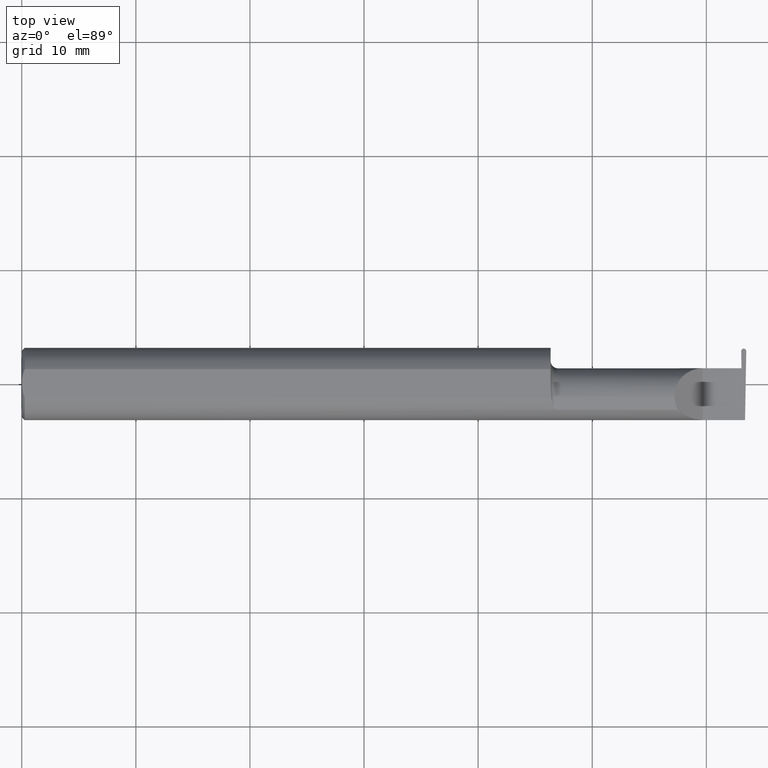
[diagram: clean part render]
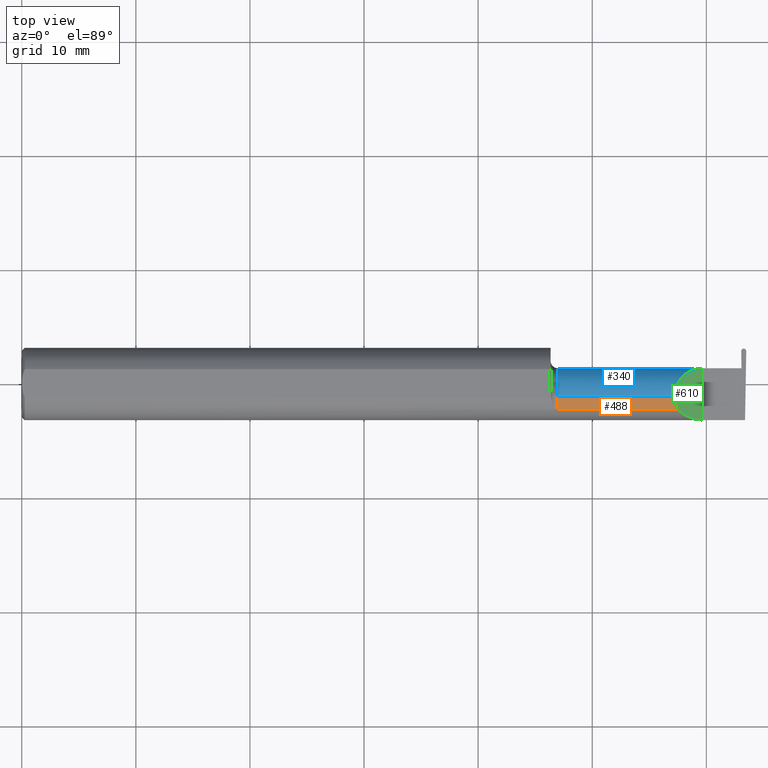
[diagram: same view with three faces highlighted in distinct colors, each labeled with its STEP entity id]
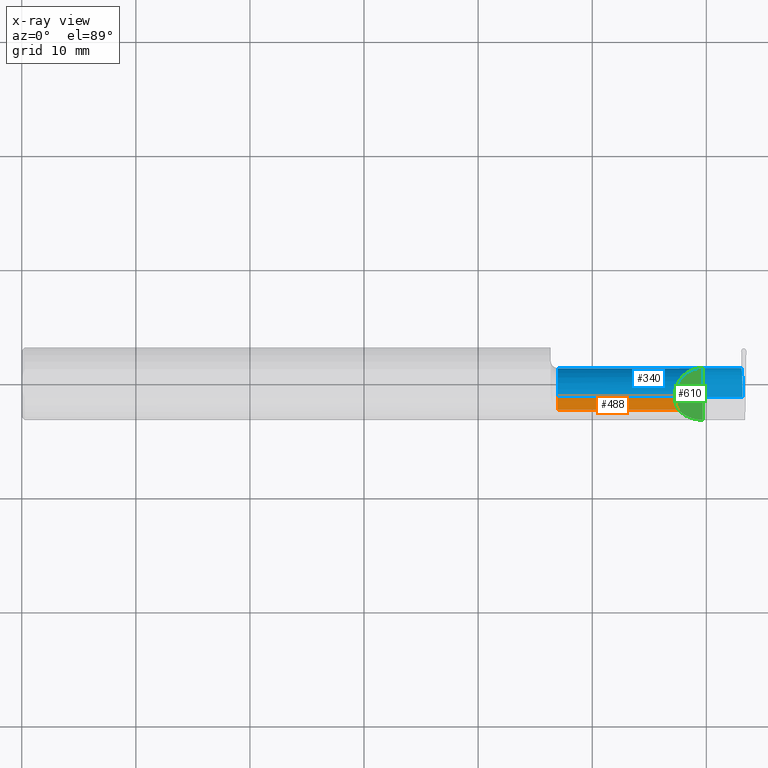
[diagram: x-ray of the same camera — body ghosted, the three highlighted faces saturated]
A machine part, top view with three faces highlighted in distinct colors.
The next image is the same camera in x-ray (body ghosted, the three faces saturated) — at least one of them is partly hidden behind the body in this view.
Their STEP definitions:

[orange] entity #488 — the highlighted cylindrical surface (edge-blend (fillet) strip) has radius 2.4892 mm, axis along (-1, -0, -0).
#3 = ORIENTED_EDGE ( 'NONE', *, *, #796, .F. ) ;
#46 = ORIENTED_EDGE ( 'NONE', *, *, #664, .T. ) ;
#66 = CARTESIAN_POINT ( 'NONE',  ( 2.263691591372603895, -0.09042045454545429017, 0.08630840862739526387 ) ) ;
#90 = AXIS2_PLACEMENT_3D ( 'NONE', #227, #290, #478 ) ;
#101 = CARTESIAN_POINT ( 'NONE',  ( 2.251999999999998892, -0.04400000000000009459, 0.09800000000000008704 ) ) ;
#119 = CARTESIAN_POINT ( 'NONE',  ( 1.849999999999999867, -0.04400000000000009459, 0.09800000000000008704 ) ) ;
#128 = EDGE_LOOP ( 'NONE', ( #425, #46, #3, #735 ) ) ;
#137 = VERTEX_POINT ( 'NONE', #66 ) ;
#147 = CARTESIAN_POINT ( 'NONE',  ( 1.849999999999999867, -0.09042045454545420691, 0.08630840862739531938 ) ) ;
#154 =( BOUNDED_CURVE ( )  B_SPLINE_CURVE ( 3, ( #202, #502, #629, #319 ),
 .UNSPECIFIED., .F., .T. ) 
 B_SPLINE_CURVE_WITH_KNOTS ( ( 4, 4 ),
 ( 5.789722842198297137, 6.283185307179586232 ),
 .UNSPECIFIED. ) 
 CURVE ( )  GEOMETRIC_REPRESENTATION_ITEM ( )  RATIONAL_B_SPLINE_CURVE ( ( 1.000000000000000000, 0.9798106333074688701, 0.9798106333074688701, 1.000000000000000000 ) ) 
 REPRESENTATION_ITEM ( '' )  );
#172 = AXIS2_PLACEMENT_3D ( 'NONE', #761, #707, #215 ) ;
#182 = VECTOR ( 'NONE', #382, 39.37007874015748143 ) ;
#202 = CARTESIAN_POINT ( 'NONE',  ( 2.263691591372603895, -0.09042045454545429017, 0.08630840862739526387 ) ) ;
#215 = DIRECTION ( 'NONE',  ( 0.000000000000000000, 0.000000000000000000, 1.000000000000000000 ) ) ;
#227 = CARTESIAN_POINT ( 'NONE',  ( 1.824999999999999956, -0.04400000000000009459, 0.000000000000000000 ) ) ;
#242 = CARTESIAN_POINT ( 'NONE',  ( 1.824999999999999956, -0.04400000000000009459, 0.09800000000000008704 ) ) ;
#255 = VERTEX_POINT ( 'NONE', #101 ) ;
#290 = DIRECTION ( 'NONE',  ( -1.000000000000000000, -0.000000000000000000, -0.000000000000000000 ) ) ;
#319 = CARTESIAN_POINT ( 'NONE',  ( 2.251999999999998892, -0.04400000000000009459, 0.09800000000000008704 ) ) ;
#329 = VECTOR ( 'NONE', #595, 39.37007874015748143 ) ;
#382 = DIRECTION ( 'NONE',  ( -1.000000000000000000, -0.000000000000000000, -0.000000000000000000 ) ) ;
#425 = ORIENTED_EDGE ( 'NONE', *, *, #809, .T. ) ;
#448 = EDGE_CURVE ( 'NONE', #790, #137, #725, .T. ) ;
#468 = FACE_OUTER_BOUND ( 'NONE', #128, .T. ) ;
#478 = DIRECTION ( 'NONE',  ( 0.000000000000000000, 0.000000000000000000, 1.000000000000000000 ) ) ;
#488 = ADVANCED_FACE ( 'NONE', ( #468 ), #786, .T. ) ;
#502 = CARTESIAN_POINT ( 'NONE',  ( 2.255977500337024377, -0.07607783494366271437, 0.09402249966297458739 ) ) ;
#595 = DIRECTION ( 'NONE',  ( 1.000000000000000000, 0.000000000000000000, 0.000000000000000000 ) ) ;
#599 = CARTESIAN_POINT ( 'NONE',  ( 2.166241705000000017, -0.09042045454545424854, 0.08630840862739529162 ) ) ;
#606 = VERTEX_POINT ( 'NONE', #119 ) ;
#629 = CARTESIAN_POINT ( 'NONE',  ( 2.251999999999998892, -0.06028551311893201592, 0.09800000000000008704 ) ) ;
#664 = EDGE_CURVE ( 'NONE', #255, #606, #734, .T. ) ;
#707 = DIRECTION ( 'NONE',  ( -1.000000000000000000, -0.000000000000000000, -0.000000000000000000 ) ) ;
#725 = LINE ( 'NONE', #599, #329 ) ;
#734 = LINE ( 'NONE', #242, #182 ) ;
#735 = ORIENTED_EDGE ( 'NONE', *, *, #448, .T. ) ;
#742 = CIRCLE ( 'NONE', #172, 0.09800000000000008704 ) ;
#761 = CARTESIAN_POINT ( 'NONE',  ( 1.849999999999999867, -0.04400000000000009459, 0.000000000000000000 ) ) ;
#786 = CYLINDRICAL_SURFACE ( 'NONE', #90, 0.09800000000000008704 ) ;
#790 = VERTEX_POINT ( 'NONE', #147 ) ;
#796 = EDGE_CURVE ( 'NONE', #790, #606, #742, .T. ) ;
#809 = EDGE_CURVE ( 'NONE', #137, #255, #154, .T. ) ;

[blue] entity #340 — the highlighted cylindrical surface (edge-blend (fillet) strip) has radius 2.4892 mm, axis along (-1, -0, -0).
#7 = AXIS2_PLACEMENT_3D ( 'NONE', #230, #730, #779 ) ;
#18 = CARTESIAN_POINT ( 'NONE',  ( 2.487115857322145018, -0.04400000000000009459, -0.09800000000000008704 ) ) ;
#31 = EDGE_CURVE ( 'NONE', #536, #445, #450, .T. ) ;
#47 = CARTESIAN_POINT ( 'NONE',  ( 1.824999999999999956, 0.05376127692546274484, -0.006836134426924772231 ) ) ;
#54 = EDGE_CURVE ( 'NONE', #255, #144, #250, .T. ) ;
#101 = CARTESIAN_POINT ( 'NONE',  ( 2.251999999999998892, -0.04400000000000009459, 0.09800000000000008704 ) ) ;
#110 = DIRECTION ( 'NONE',  ( 1.000000000000000000, 0.000000000000000000, 0.000000000000000000 ) ) ;
#119 = CARTESIAN_POINT ( 'NONE',  ( 1.849999999999999867, -0.04400000000000009459, 0.09800000000000008704 ) ) ;
#122 = CARTESIAN_POINT ( 'NONE',  ( 2.292592929112562405, 0.05399999999999997163, 0.05740707088743676745 ) ) ;
#125 = CARTESIAN_POINT ( 'NONE',  ( 2.477329199258169634, 0.05399999999999997163, 0.000000000000000000 ) ) ;
#138 = EDGE_CURVE ( 'NONE', #536, #512, #303, .T. ) ;
#144 = VERTEX_POINT ( 'NONE', #753 ) ;
#149 = ORIENTED_EDGE ( 'NONE', *, *, #237, .F. ) ;
#157 = ORIENTED_EDGE ( 'NONE', *, *, #664, .F. ) ;
#176 = LINE ( 'NONE', #674, #600 ) ;
#178 = CARTESIAN_POINT ( 'NONE',  ( 2.477090476183632539, 0.05376127692546273096, -0.006836134426924921417 ) ) ;
#182 = VECTOR ( 'NONE', #382, 39.37007874015748143 ) ;
#195 = CARTESIAN_POINT ( 'NONE',  ( 1.824999999999999956, -0.04400000000000008765, -0.09800000000000008704 ) ) ;
#219 = CARTESIAN_POINT ( 'NONE',  ( 2.487115857322145018, -0.04400000000000009459, -0.09800000000000008704 ) ) ;
#226 = VERTEX_POINT ( 'NONE', #178 ) ;
#230 = CARTESIAN_POINT ( 'NONE',  ( 1.849999999999999867, -0.04400000000000009459, 0.000000000000000000 ) ) ;
#237 = EDGE_CURVE ( 'NONE', #512, #226, #807, .T. ) ;
#242 = CARTESIAN_POINT ( 'NONE',  ( 1.824999999999999956, -0.04400000000000009459, 0.09800000000000008704 ) ) ;
#250 =( BOUNDED_CURVE ( )  B_SPLINE_CURVE ( 3, ( #633, #331, #122, #265 ),
 .UNSPECIFIED., .F., .F. ) 
 B_SPLINE_CURVE_WITH_KNOTS ( ( 4, 4 ),
 ( 0.000000000000000000, 1.570796326794896114 ),
 .UNSPECIFIED. ) 
 CURVE ( )  GEOMETRIC_REPRESENTATION_ITEM ( )  RATIONAL_B_SPLINE_CURVE ( ( 1.000000000000000000, 0.8047378541243650485, 0.8047378541243650485, 1.000000000000000000 ) ) 
 REPRESENTATION_ITEM ( '' )  );
#255 = VERTEX_POINT ( 'NONE', #101 ) ;
#262 = ORIENTED_EDGE ( 'NONE', *, *, #31, .T. ) ;
#265 = CARTESIAN_POINT ( 'NONE',  ( 2.350000000000000089, 0.05399999999999997163, 8.266365894244625705E-17 ) ) ;
#269 = CARTESIAN_POINT ( 'NONE',  ( 2.483759070038810801, 0.05376127692546273790, -0.006836134426924772231 ) ) ;
#303 =( BOUNDED_CURVE ( )  B_SPLINE_CURVE ( 3, ( #18, #763, #706, #269 ),
 .UNSPECIFIED., .F., .F. ) 
 B_SPLINE_CURVE_WITH_KNOTS ( ( 4, 4 ),
 ( 3.176499238629679756, 4.677482395344798149 ),
 .UNSPECIFIED. ) 
 CURVE ( )  GEOMETRIC_REPRESENTATION_ITEM ( )  RATIONAL_B_SPLINE_CURVE ( ( 1.000000000000000000, 0.8209024677461147501, 0.8209024677461147501, 1.000000000000000000 ) ) 
 REPRESENTATION_ITEM ( '' )  );
#331 = CARTESIAN_POINT ( 'NONE',  ( 2.251999999999999336, 0.01340707088743662428, 0.09800000000000008704 ) ) ;
#340 = ADVANCED_FACE ( 'NONE', ( #684 ), #744, .T. ) ;
#382 = DIRECTION ( 'NONE',  ( -1.000000000000000000, -0.000000000000000000, -0.000000000000000000 ) ) ;
#383 = VECTOR ( 'NONE', #486, 39.37007874015748143 ) ;
#405 = DIRECTION ( 'NONE',  ( -1.000000000000000000, -0.000000000000000000, -0.000000000000000000 ) ) ;
#430 = CARTESIAN_POINT ( 'NONE',  ( 2.477170050541811719, 0.05384085128364181350, -0.004557422951283275452 ) ) ;
#431 = ORIENTED_EDGE ( 'NONE', *, *, #623, .F. ) ;
#434 = CIRCLE ( 'NONE', #7, 0.09800000000000008704 ) ;
#445 = VERTEX_POINT ( 'NONE', #718 ) ;
#450 = LINE ( 'NONE', #195, #626 ) ;
#457 = DIRECTION ( 'NONE',  ( 0.000000000000000000, 0.000000000000000000, 1.000000000000000000 ) ) ;
#466 = CARTESIAN_POINT ( 'NONE',  ( 1.824999999999999956, -0.04400000000000009459, 0.000000000000000000 ) ) ;
#486 = DIRECTION ( 'NONE',  ( -1.000000000000000000, -0.000000000000000000, -0.000000000000000000 ) ) ;
#492 = EDGE_CURVE ( 'NONE', #606, #445, #434, .T. ) ;
#498 = CARTESIAN_POINT ( 'NONE',  ( 2.477090476183632539, 0.05376127692546273096, -0.006836134426924921417 ) ) ;
#512 = VERTEX_POINT ( 'NONE', #661 ) ;
#536 = VERTEX_POINT ( 'NONE', #219 ) ;
#538 = ORIENTED_EDGE ( 'NONE', *, *, #138, .F. ) ;
#552 = ORIENTED_EDGE ( 'NONE', *, *, #54, .T. ) ;
#559 = DIRECTION ( 'NONE',  ( -1.000000000000000000, -0.000000000000000000, -0.000000000000000000 ) ) ;
#570 = ORIENTED_EDGE ( 'NONE', *, *, #702, .T. ) ;
#592 = AXIS2_PLACEMENT_3D ( 'NONE', #466, #405, #457 ) ;
#593 = EDGE_LOOP ( 'NONE', ( #538, #262, #780, #157, #552, #570, #431, #149 ) ) ;
#600 = VECTOR ( 'NONE', #110, 39.37007874015748143 ) ;
#606 = VERTEX_POINT ( 'NONE', #119 ) ;
#616 = CARTESIAN_POINT ( 'NONE',  ( 2.477329199258169634, 0.05399999999999997163, 0.000000000000000000 ) ) ;
#623 = EDGE_CURVE ( 'NONE', #226, #646, #692, .T. ) ;
#626 = VECTOR ( 'NONE', #559, 39.37007874015748143 ) ;
#633 = CARTESIAN_POINT ( 'NONE',  ( 2.251999999999998892, -0.04400000000000009459, 0.09800000000000008704 ) ) ;
#646 = VERTEX_POINT ( 'NONE', #125 ) ;
#661 = CARTESIAN_POINT ( 'NONE',  ( 2.483759070038810801, 0.05376127692546273790, -0.006836134426924772231 ) ) ;
#664 = EDGE_CURVE ( 'NONE', #255, #606, #734, .T. ) ;
#674 = CARTESIAN_POINT ( 'NONE',  ( 1.824999999999999956, 0.05399999999999997163, 8.266365894244625705E-17 ) ) ;
#682 = CARTESIAN_POINT ( 'NONE',  ( 2.477249624899990899, 0.05392042564182088910, -0.002278711475641637726 ) ) ;
#684 = FACE_OUTER_BOUND ( 'NONE', #593, .T. ) ;
#692 = B_SPLINE_CURVE_WITH_KNOTS ( 'NONE', 3,
 ( #498, #430, #682, #616 ),
 .UNSPECIFIED., .F., .F.,
 ( 4, 4 ),
 ( 0.000000000000000000, 1.000000000000000000 ),
 .UNSPECIFIED. ) ;
#702 = EDGE_CURVE ( 'NONE', #144, #646, #176, .T. ) ;
#706 = CARTESIAN_POINT ( 'NONE',  ( 2.485685536098598103, 0.04997501107658530728, -0.06098225869090301288 ) ) ;
#718 = CARTESIAN_POINT ( 'NONE',  ( 1.849999999999999867, -0.04400000000000008765, -0.09800000000000008704 ) ) ;
#730 = DIRECTION ( 'NONE',  ( -1.000000000000000000, -0.000000000000000000, -0.000000000000000000 ) ) ;
#734 = LINE ( 'NONE', #242, #182 ) ;
#744 = CYLINDRICAL_SURFACE ( 'NONE', #592, 0.09800000000000008704 ) ;
#753 = CARTESIAN_POINT ( 'NONE',  ( 2.350000000000000089, 0.05399999999999997163, 8.266365894244625705E-17 ) ) ;
#763 = CARTESIAN_POINT ( 'NONE',  ( 2.487048583644937416, 0.01027834358092124568, -0.09800000000000012867 ) ) ;
#779 = DIRECTION ( 'NONE',  ( 0.000000000000000000, 0.000000000000000000, 1.000000000000000000 ) ) ;
#780 = ORIENTED_EDGE ( 'NONE', *, *, #492, .F. ) ;
#807 = LINE ( 'NONE', #47, #383 ) ;

[green] entity #610 — the highlighted planar face has unit normal (-0.7071, 0, -0.7071).
#14 = CARTESIAN_POINT ( 'NONE',  ( 2.350000000000000089, -0.1250000000000000278, 1.836970198721028825E-17 ) ) ;
#54 = EDGE_CURVE ( 'NONE', #255, #144, #250, .T. ) ;
#66 = CARTESIAN_POINT ( 'NONE',  ( 2.263691591372603895, -0.09042045454545429017, 0.08630840862739526387 ) ) ;
#86 = ORIENTED_EDGE ( 'NONE', *, *, #722, .F. ) ;
#101 = CARTESIAN_POINT ( 'NONE',  ( 2.251999999999998892, -0.04400000000000009459, 0.09800000000000008704 ) ) ;
#122 = CARTESIAN_POINT ( 'NONE',  ( 2.292592929112562405, 0.05399999999999997163, 0.05740707088743676745 ) ) ;
#132 = EDGE_LOOP ( 'NONE', ( #489, #86, #212, #556 ) ) ;
#137 = VERTEX_POINT ( 'NONE', #66 ) ;
#144 = VERTEX_POINT ( 'NONE', #753 ) ;
#154 =( BOUNDED_CURVE ( )  B_SPLINE_CURVE ( 3, ( #202, #502, #629, #319 ),
 .UNSPECIFIED., .F., .T. ) 
 B_SPLINE_CURVE_WITH_KNOTS ( ( 4, 4 ),
 ( 5.789722842198297137, 6.283185307179586232 ),
 .UNSPECIFIED. ) 
 CURVE ( )  GEOMETRIC_REPRESENTATION_ITEM ( )  RATIONAL_B_SPLINE_CURVE ( ( 1.000000000000000000, 0.9798106333074688701, 0.9798106333074688701, 1.000000000000000000 ) ) 
 REPRESENTATION_ITEM ( '' )  );
#168 = VERTEX_POINT ( 'NONE', #680 ) ;
#202 = CARTESIAN_POINT ( 'NONE',  ( 2.263691591372603895, -0.09042045454545429017, 0.08630840862739526387 ) ) ;
#212 = ORIENTED_EDGE ( 'NONE', *, *, #432, .T. ) ;
#250 =( BOUNDED_CURVE ( )  B_SPLINE_CURVE ( 3, ( #633, #331, #122, #265 ),
 .UNSPECIFIED., .F., .F. ) 
 B_SPLINE_CURVE_WITH_KNOTS ( ( 4, 4 ),
 ( 0.000000000000000000, 1.570796326794896114 ),
 .UNSPECIFIED. ) 
 CURVE ( )  GEOMETRIC_REPRESENTATION_ITEM ( )  RATIONAL_B_SPLINE_CURVE ( ( 1.000000000000000000, 0.8047378541243650485, 0.8047378541243650485, 1.000000000000000000 ) ) 
 REPRESENTATION_ITEM ( '' )  );
#255 = VERTEX_POINT ( 'NONE', #101 ) ;
#265 = CARTESIAN_POINT ( 'NONE',  ( 2.350000000000000089, 0.05399999999999997163, 8.266365894244625705E-17 ) ) ;
#297 = DIRECTION ( 'NONE',  ( -0.7071067811865439090, 0.000000000000000000, -0.7071067811865511255 ) ) ;
#319 = CARTESIAN_POINT ( 'NONE',  ( 2.251999999999998892, -0.04400000000000009459, 0.09800000000000008704 ) ) ;
#331 = CARTESIAN_POINT ( 'NONE',  ( 2.251999999999999336, 0.01340707088743662428, 0.09800000000000008704 ) ) ;
#334 = CARTESIAN_POINT ( 'NONE',  ( 2.263691591372603895, -0.09042045454545429017, 0.08630840862739526387 ) ) ;
#378 = DIRECTION ( 'NONE',  ( -0.7071067811865511255, 0.000000000000000000, 0.7071067811865439090 ) ) ;
#401 = CARTESIAN_POINT ( 'NONE',  ( 2.317450832343515454, -0.1250000000000000000, 0.03254916765648422500 ) ) ;
#402 = LINE ( 'NONE', #648, #717 ) ;
#432 = EDGE_CURVE ( 'NONE', #168, #144, #402, .T. ) ;
#489 = ORIENTED_EDGE ( 'NONE', *, *, #809, .F. ) ;
#502 = CARTESIAN_POINT ( 'NONE',  ( 2.255977500337024377, -0.07607783494366271437, 0.09402249966297458739 ) ) ;
#510 = CARTESIAN_POINT ( 'NONE',  ( 2.287236475649208511, -0.1128945894460738203, 0.06276352435079116110 ) ) ;
#556 = ORIENTED_EDGE ( 'NONE', *, *, #54, .F. ) ;
#587 = DIRECTION ( 'NONE',  ( -0.000000000000000000, 1.000000000000000000, -0.000000000000000000 ) ) ;
#610 = ADVANCED_FACE ( 'NONE', ( #740 ), #689, .F. ) ;
#619 = CARTESIAN_POINT ( 'NONE',  ( 2.350000000000000089, -0.2500000000000000555, 1.836970198721028825E-17 ) ) ;
#629 = CARTESIAN_POINT ( 'NONE',  ( 2.251999999999998892, -0.06028551311893201592, 0.09800000000000008704 ) ) ;
#630 =( BOUNDED_CURVE ( )  B_SPLINE_CURVE ( 3, ( #14, #401, #510, #334 ),
 .UNSPECIFIED., .F., .F. ) 
 B_SPLINE_CURVE_WITH_KNOTS ( ( 4, 4 ),
 ( 4.712388980384689674, 5.474523801125207534 ),
 .UNSPECIFIED. ) 
 CURVE ( )  GEOMETRIC_REPRESENTATION_ITEM ( )  RATIONAL_B_SPLINE_CURVE ( ( 1.000000000000000000, 0.9521787881681380572, 0.9521787881681380572, 1.000000000000000000 ) ) 
 REPRESENTATION_ITEM ( '' )  );
#633 = CARTESIAN_POINT ( 'NONE',  ( 2.251999999999998892, -0.04400000000000009459, 0.09800000000000008704 ) ) ;
#648 = CARTESIAN_POINT ( 'NONE',  ( 2.350000000000000089, -0.2500000000000000555, 1.836970198721028825E-17 ) ) ;
#679 = AXIS2_PLACEMENT_3D ( 'NONE', #619, #297, #378 ) ;
#680 = CARTESIAN_POINT ( 'NONE',  ( 2.350000000000000089, -0.1250000000000000278, 1.836970198721028825E-17 ) ) ;
#689 = PLANE ( 'NONE',  #679 ) ;
#717 = VECTOR ( 'NONE', #587, 39.37007874015748143 ) ;
#722 = EDGE_CURVE ( 'NONE', #168, #137, #630, .T. ) ;
#740 = FACE_OUTER_BOUND ( 'NONE', #132, .T. ) ;
#753 = CARTESIAN_POINT ( 'NONE',  ( 2.350000000000000089, 0.05399999999999997163, 8.266365894244625705E-17 ) ) ;
#809 = EDGE_CURVE ( 'NONE', #137, #255, #154, .T. ) ;